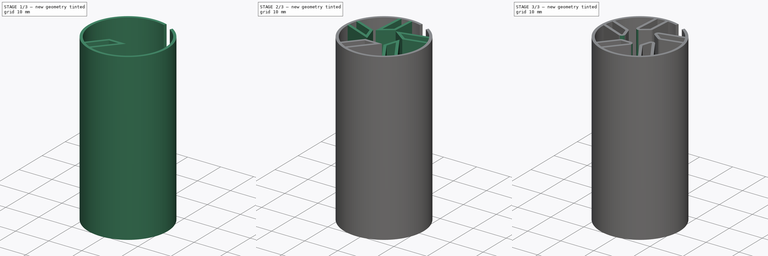
[diagram: build sequence overview — one tinted view per stage of 3, left to right]
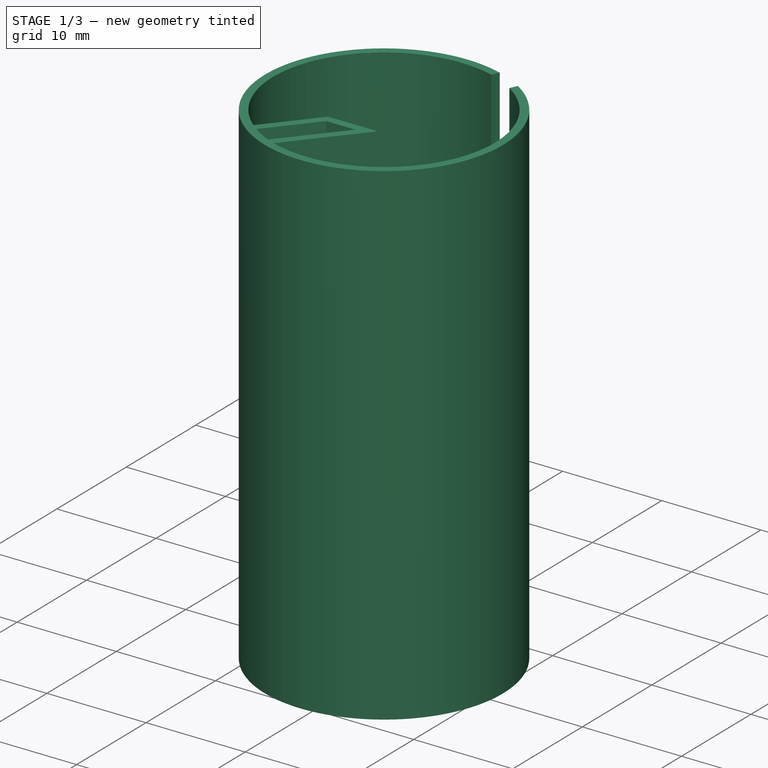
[diagram: stage 1 of 3 — iso view after this stage's code; geometry added in this stage tinted green]
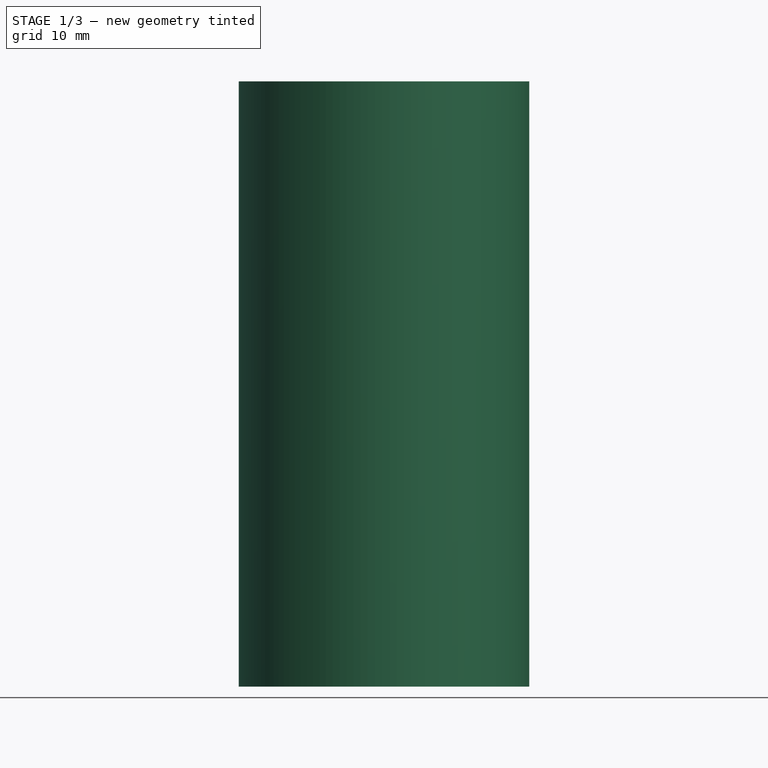
[diagram: stage 1 of 3 — front view after this stage's code; geometry added in this stage tinted green]
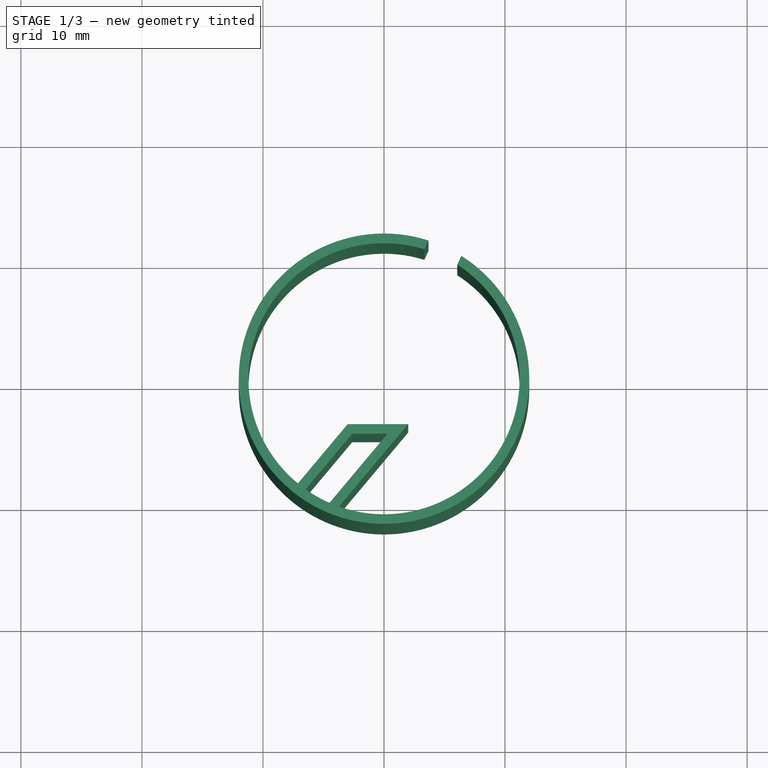
[diagram: stage 1 of 3 — top view after this stage's code; geometry added in this stage tinted green]
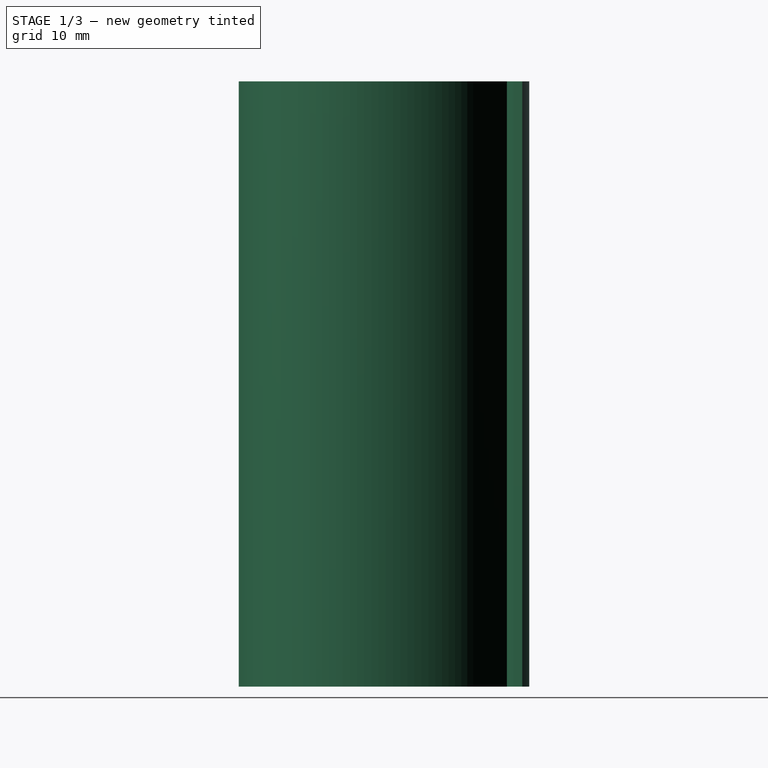
[diagram: stage 1 of 3 — right view after this stage's code; geometry added in this stage tinted green]
FCSTD DOCUMENT  (FreeCAD 0.18R16146 (Git))
Label: vp4019
License: All rights reserved
LicenseURL: http://en.wikipedia.org/wiki/All_rights_reserved
objects: Sketcher::SketchObject×2, PartDesign::Pad×2, PartDesign::Fillet×2, PartDesign::PolarPattern×1, PartDesign::Body×1
note: 10 computed .brp shape members not serialized (recipe doc carries the construction recipe); baked Part::Feature solids carry a one-line shape summary decoded from their .brp

FEATURE [Sketcher::SketchObject] Sketch
  MapMode = 5
  Support = -> [XY_Plane]
  sketch-geometry (4):
    g0: ArcOfCircle CenterX=0 CenterY=0 CenterZ=0 NormalX=0 NormalY=0 NormalZ=1 AngleXU=0 Radius=12 StartAngle=1.25979 EndAngle=7.29232
    g1: ArcOfCircle CenterX=0 CenterY=0 CenterZ=0 NormalX=0 NormalY=0 NormalZ=1 AngleXU=0 Radius=11.2 StartAngle=1.2688 EndAngle=7.28332
    g2: LineSegment StartX=3.67218 StartY=11.4243 StartZ=0 EndX=3.33122 EndY=10.6931 EndZ=0
    g3: LineSegment StartX=6.3911 StartY=10.1565 StartZ=0 EndX=6.05014 EndY=9.42527 EndZ=0
  constraints (12):
    c: Coincident(g1,g0)
    c: Radius(g0) = 12
    c: Radius(g1) = 11.2
    c: Coincident(g0,g-1)
    c: Coincident(g2,g0)
    c: Coincident(g3,g0)
    c: Coincident(g3,g1)
    c: Coincident(g2,g1)
    c: Parallel(g3,g2)
    c: Distance(g0,g2) = 1.5
    c: Distance(g0,g3) = 1.5
    c: Angle(g-1,g2) = 1.13446
FEATURE [PartDesign::Pad] Pad
  Length = 50
  Length2 = 100
  Profile = -> Sketch
  Type = 0
FEATURE [Sketcher::SketchObject] Sketch001
  MapMode = 5
  Placement = pos=(0,0,50) rot=(0,0,1;0rad)
  Support = -> [Pad]
  sketch-geometry (8):
    g0: LineSegment StartX=-3 StartY=-3.75 StartZ=0 EndX=-7.11282 EndY=-8.65146 EndZ=0
    g1: LineSegment StartX=-2.62695 StartY=-4.55 StartZ=0 EndX=-6.47642 EndY=-9.13761 EndZ=0
    g2: ArcOfCircle CenterX=0 CenterY=0 CenterZ=0 NormalX=0 NormalY=0 NormalZ=1 AngleXU=0 Radius=11.2 StartAngle=4.02429 EndAngle=4.0958
    g3: LineSegment StartX=-2.62695 StartY=-4.55 StartZ=0 EndX=0.284394 EndY=-4.55 EndZ=0
    g4: LineSegment StartX=-3 StartY=-3.75 StartZ=0 EndX=2 EndY=-3.75 EndZ=0
    g5: LineSegment StartX=0.284394 StartY=-4.55 StartZ=0 EndX=-4.5027 EndY=-10.255 EndZ=0
    g6: LineSegment StartX=2 StartY=-3.75 StartZ=0 EndX=-3.71827 EndY=-10.5648 EndZ=0
    g7: ArcOfCircle CenterX=0 CenterY=0 CenterZ=0 NormalX=0 NormalY=0 NormalZ=1 AngleXU=0 Radius=11.2 StartAngle=4.29866 EndAngle=4.37398
  constraints (24):
    c: Coincident(g2,g1)
    c: Coincident(g0,g2)
    c: Coincident(g2,g-1)
    c: Radius(g2) = 11.2
    c: Parallel(g1,g0)
    c: Angle(g-1,g0) = 0.872665
    c: Distance(g0,g1) = 0.8
    c: Coincident(g3,g1)
    c: Horizontal(g3)
    c: Horizontal(g4)
    c: Coincident(g4,g0)
    c: Coincident(g5,g3)
    c: Coincident(g7,g5)
    c: Coincident(g7,g6)
    c: Coincident(g7,g2)
    c: Equal(g7,g2)
    c: Parallel(g5,g1)
    c: Parallel(g6,g5)
    c: Coincident(g6,g4)
    c: Distance(g5,g6) = 0.8
    c: DistanceY(g4,g2) = 3.75
    c: DistanceY(g3,g4) = 0.8
    c: DistanceX(g2,g4) = 2
    c: DistanceX(g0,g2) = 3
FEATURE [PartDesign::Pad] Pad001
  BaseFeature = -> Pad
  Length = 40
  Length2 = 30
  Profile = -> Sketch001
  Reversed = true
  Type = 0
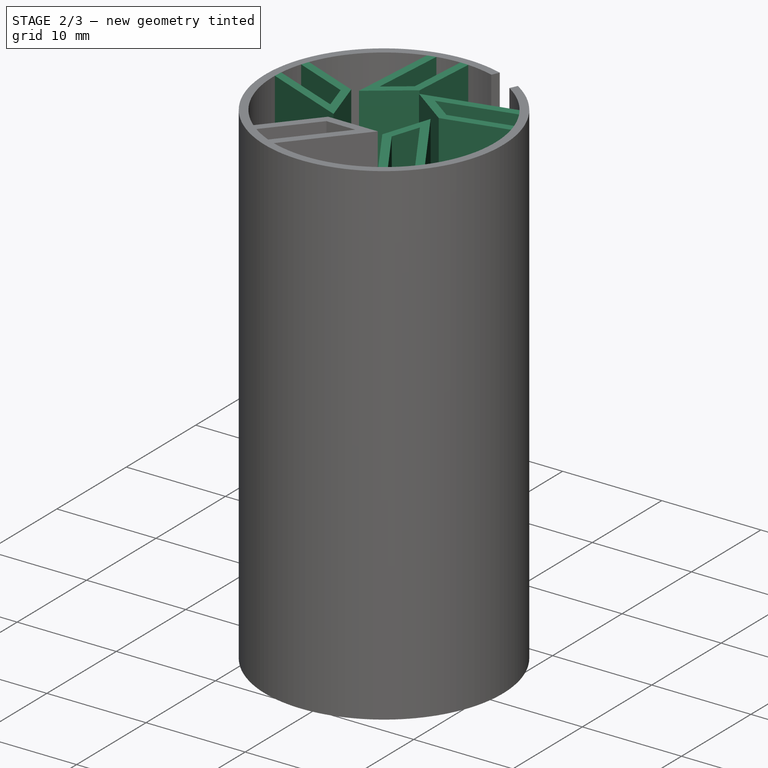
[diagram: stage 2 of 3 — iso view after this stage's code; geometry added in this stage tinted green]
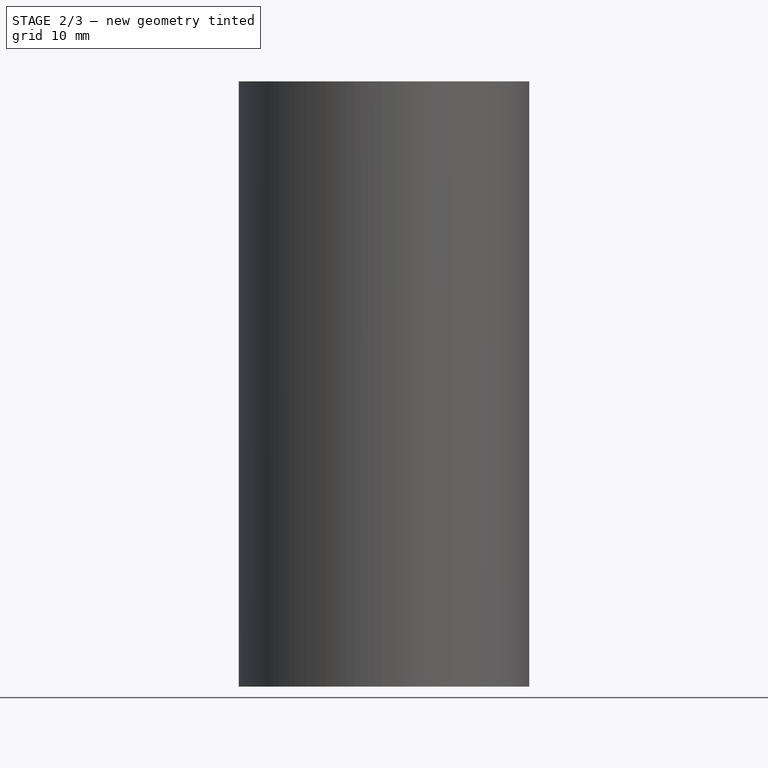
[diagram: stage 2 of 3 — front view after this stage's code; geometry added in this stage tinted green]
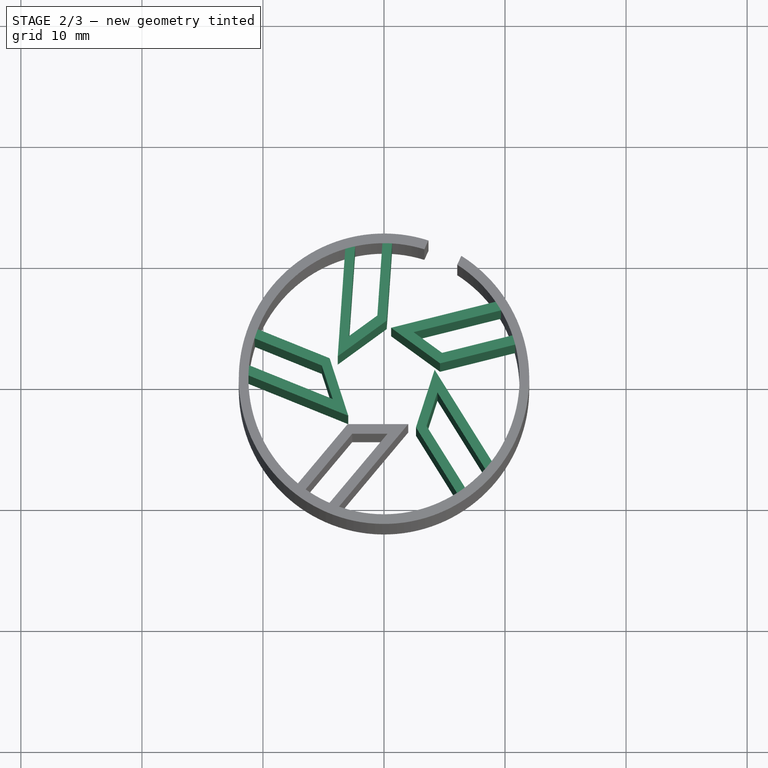
[diagram: stage 2 of 3 — top view after this stage's code; geometry added in this stage tinted green]
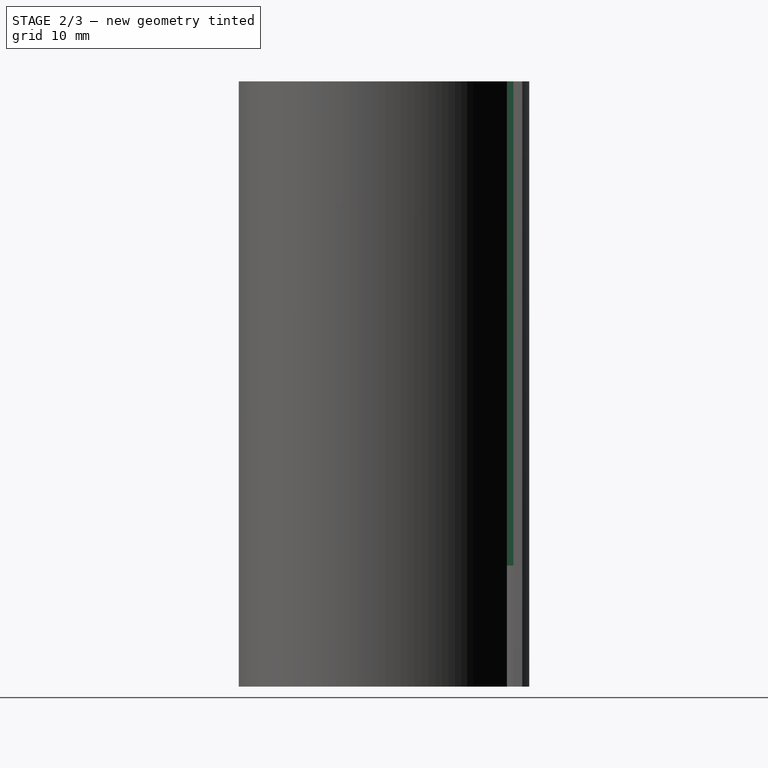
[diagram: stage 2 of 3 — right view after this stage's code; geometry added in this stage tinted green]
FEATURE [PartDesign::PolarPattern] PolarPattern
  Angle = 360
  Axis = -> Sketch001 [N_Axis]
  BaseFeature = -> Pad001
  Occurrences = 5
  Originals = -> [Pad001]
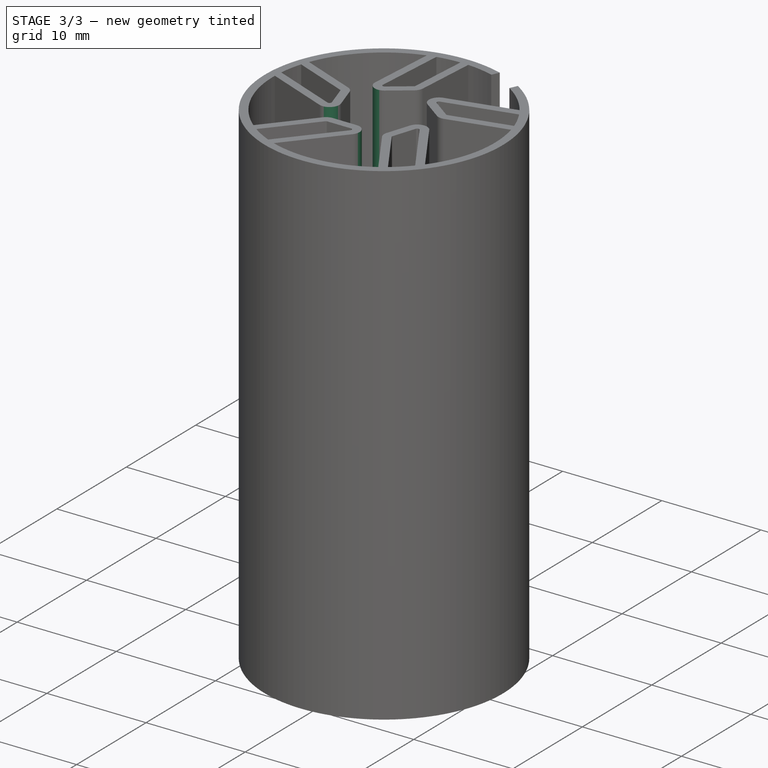
[diagram: stage 3 of 3 — iso view after this stage's code; geometry added in this stage tinted green]
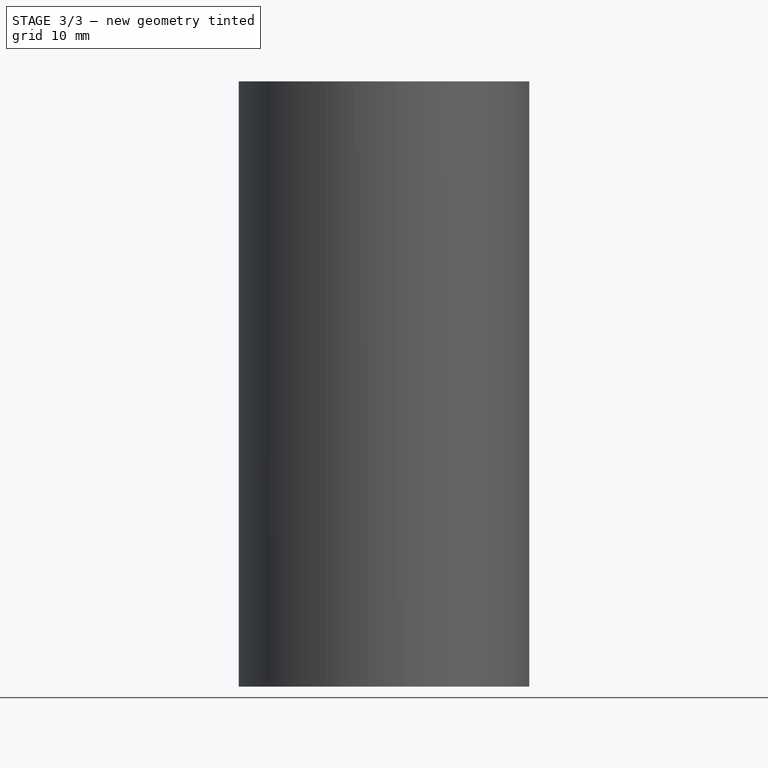
[diagram: stage 3 of 3 — front view after this stage's code; geometry added in this stage tinted green]
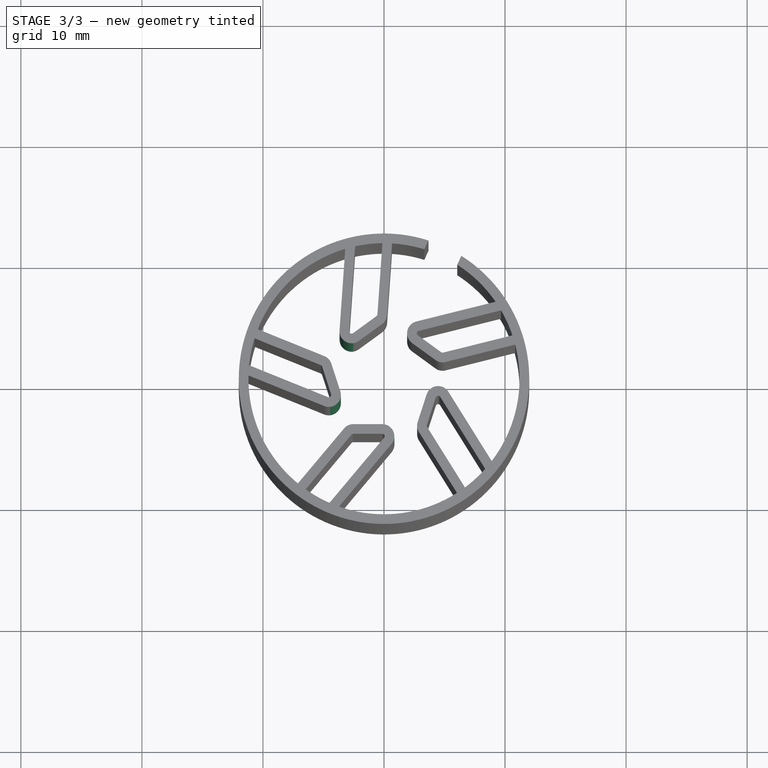
[diagram: stage 3 of 3 — top view after this stage's code; geometry added in this stage tinted green]
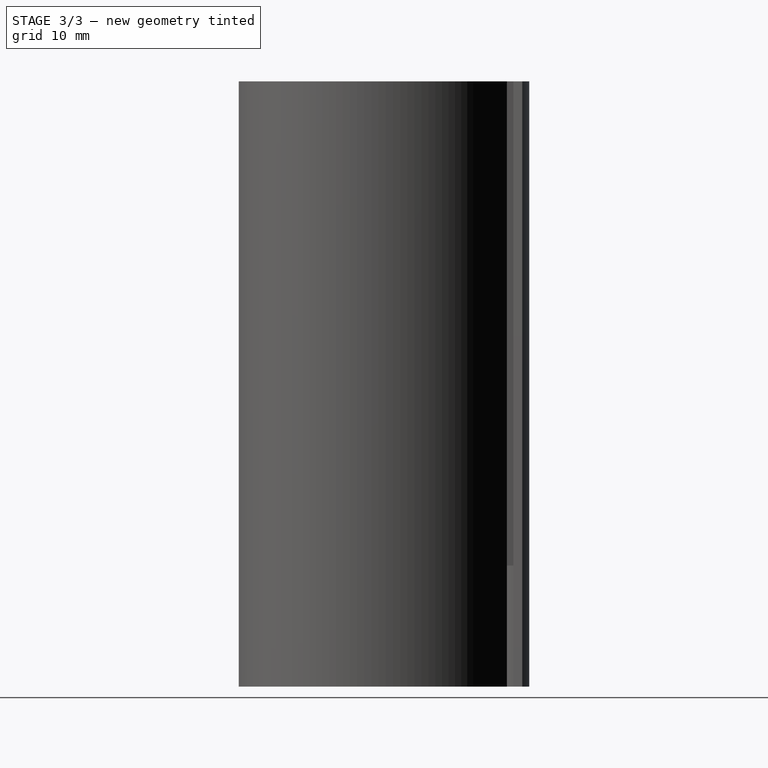
[diagram: stage 3 of 3 — right view after this stage's code; geometry added in this stage tinted green]
FEATURE [PartDesign::Fillet] Fillet
  Base = -> PolarPattern [Edge77,Edge119,Edge105,Edge91,Edge63,Edge75,Edge89,Edge103,Edge131,Edge117]
  BaseFeature = -> PolarPattern
  Radius = 1
FEATURE [PartDesign::Fillet] Fillet001
  Base = -> Fillet [Edge128,Edge126,Edge112,Edge110,Edge96,Edge94,Edge78,Edge79,Edge144,Edge142]
  BaseFeature = -> Fillet
  Radius = 0.2
FEATURE [PartDesign::Body] Body
  Group = -> [Sketch,Pad,Sketch001,Pad001,PolarPattern,Fillet,Fillet001]
  Origin = -> Origin
  Tip = -> Fillet001
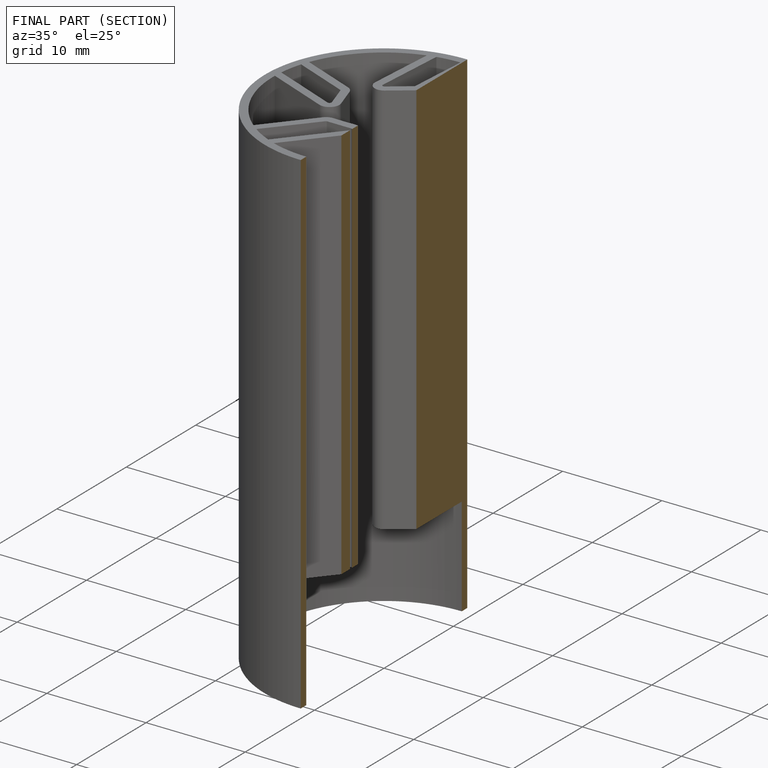
[diagram: finished part — half-section view (interior)]
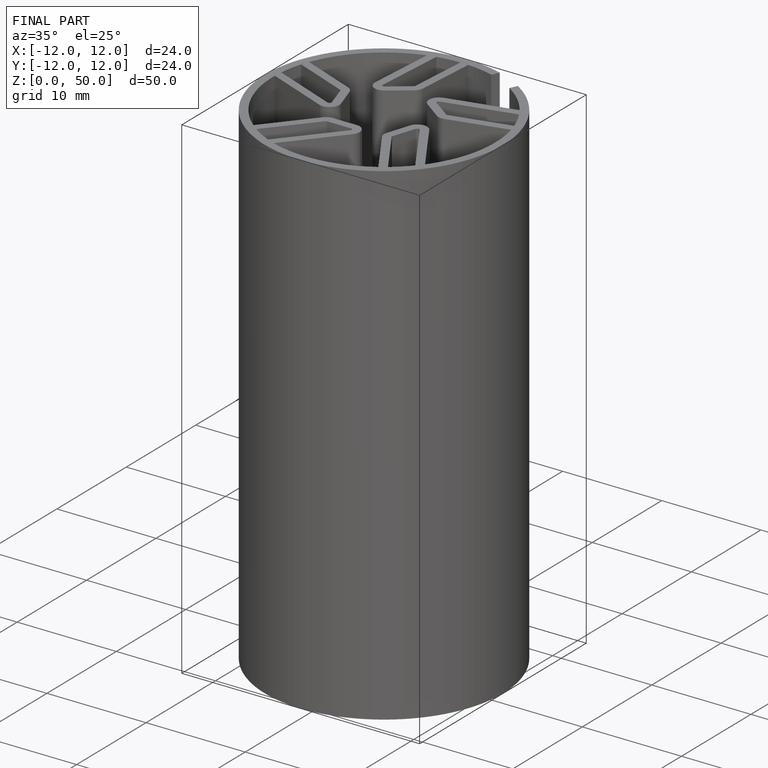
[diagram: finished part — iso view with bounding-box wireframe]
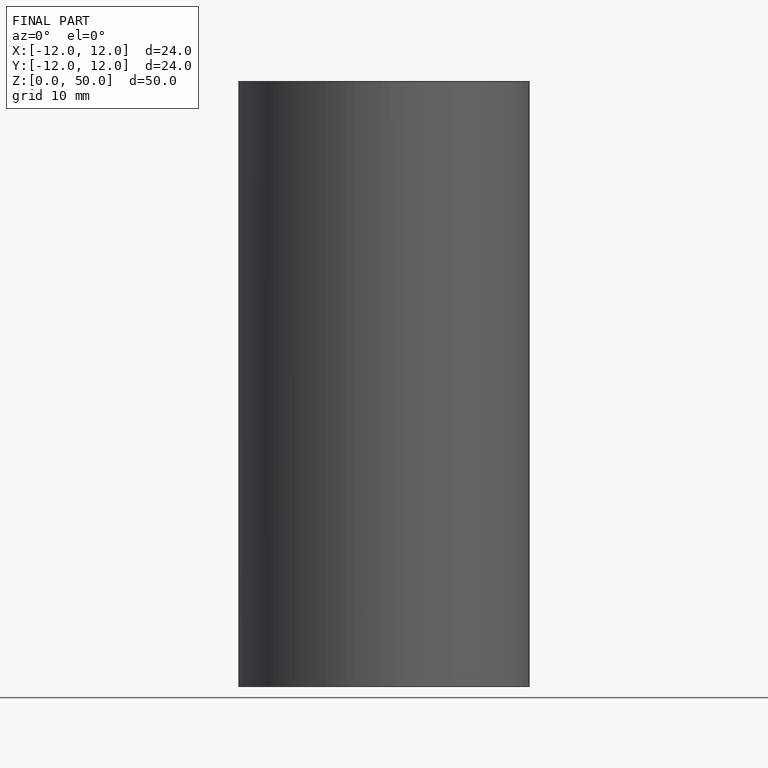
[diagram: finished part — front view with bounding-box wireframe]
